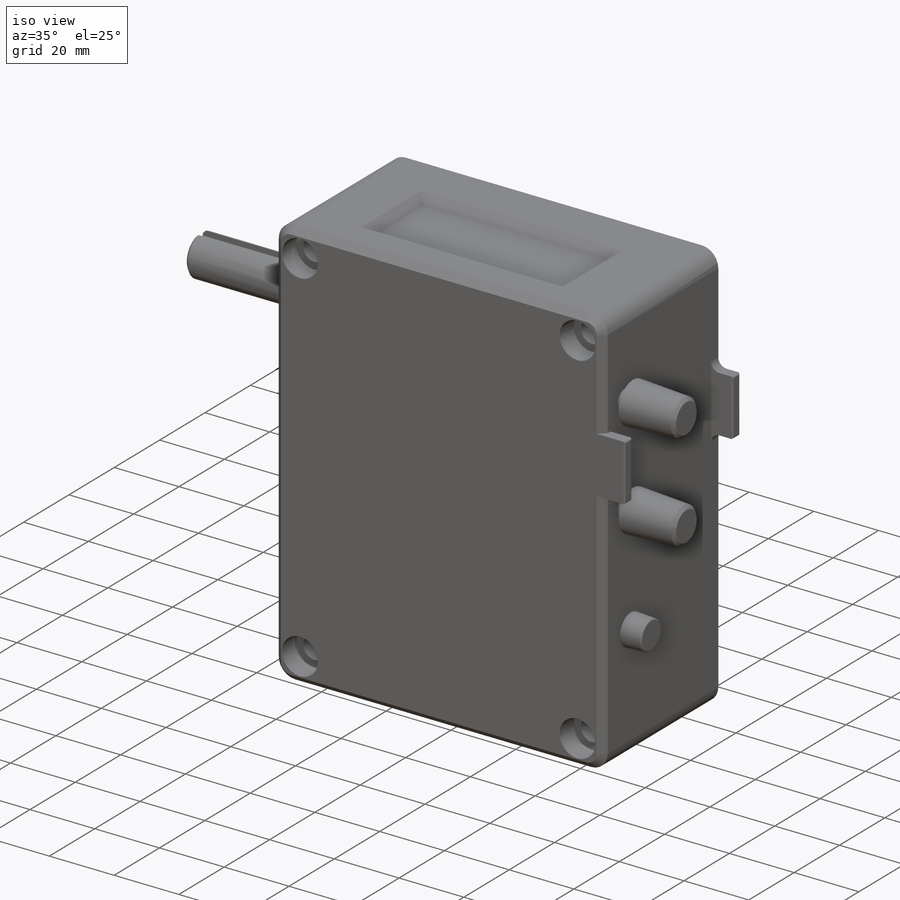
[diagram: iso view]
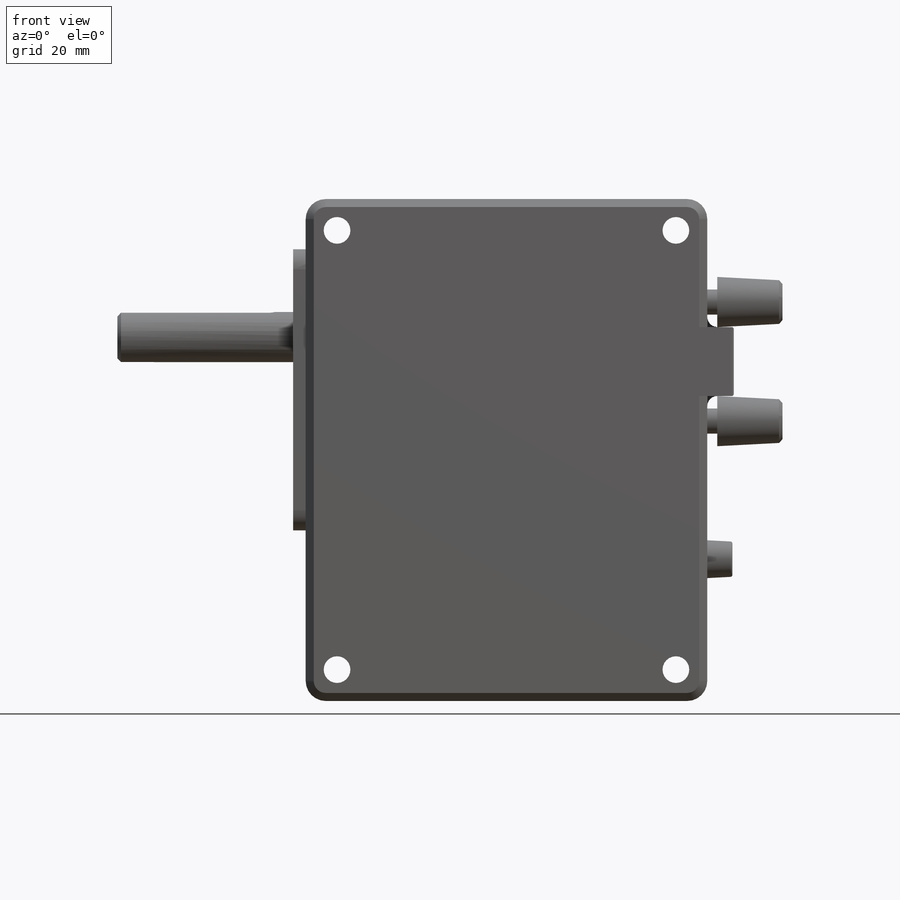
[diagram: front view]
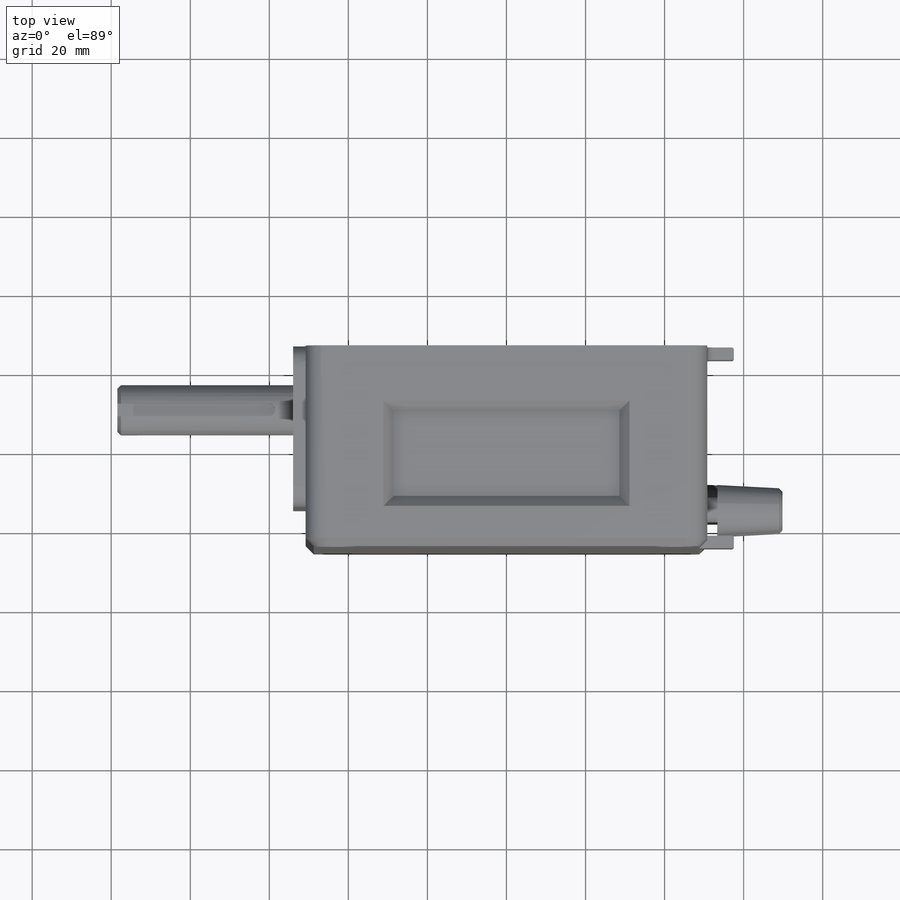
[diagram: top view]
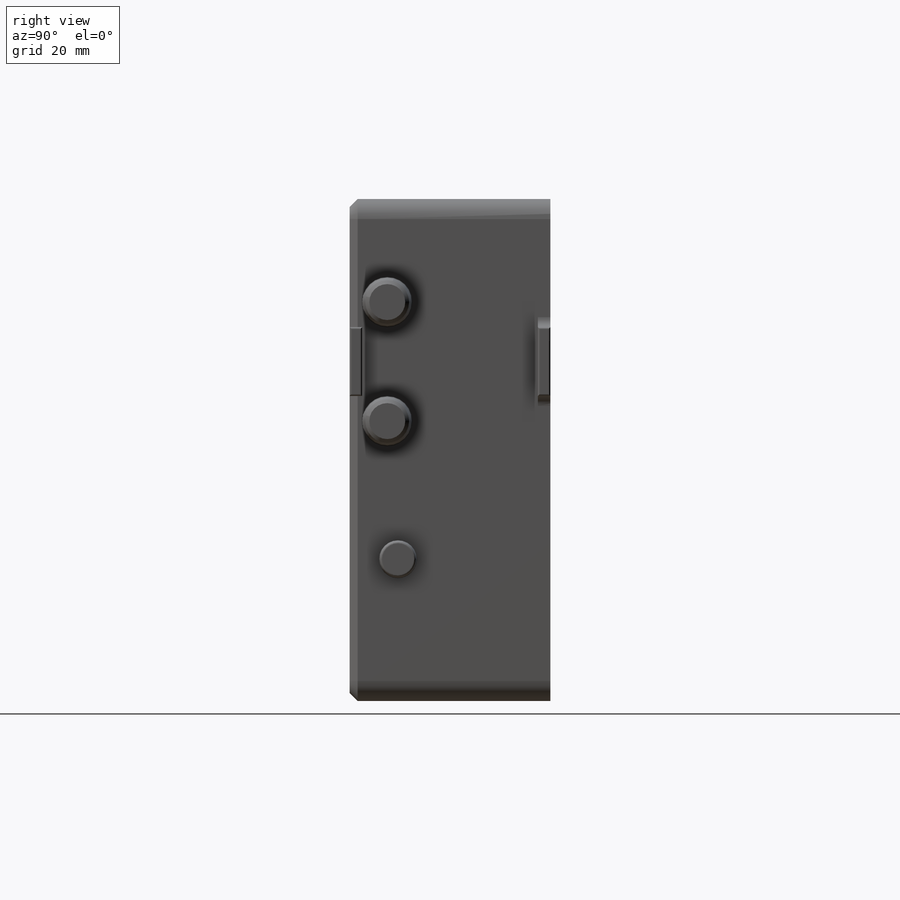
[diagram: right view]
SOLIDWORKS PART (.sldprt)
format: sldprt  version: not decoded by parser v0  size: 472,064 bytes
history: native  units: mm
features: sketch x12, extrude x8, fillet x5, chamfer x3, cut_extrude x2, material x1, hole x1 (+16 scaffold rows collapsed)
feature tree (48):
  scaffold x16  (default folders/planes/origin — collapsed)
  material  "Material <not specified>"
  sketch  "Sketch2"  dims[D1=101.6mm D2=127.0mm]
  extrude  "Boss-Extrude1"  Depth=50.8mm
  fillet  "Fillet1"  Radius=5.08mm
  hole  "CBORE for 1/4 Socket Head Cap Screw1"  Diameter=6.7564mm Depth=50.8mm
  sketch  "Sketch4"  dims[D1=85.725mm D2=111.125mm]
  sketch  "Sketch3"  dims[hole-wizard template sketch: 42 standard entries collapsed; hole parameters kept: c12.Thru Hole Depth=50.8mm c12.C'Bore Dia.=11.1125mm c12.C'Bore Depth=6.35mm]
  sketch  "Sketch6"  dims[D1=40.64mm D2=12.7mm D3=71.12mm]
  extrude  "Boss-Extrude3"  Depth=3.175mm
  sketch  "Sketch5"  dims[c1.D1=~13.504256mm c1.D2=~13.504256mm c1.D3=12.7mm c2.D1=34.925mm c2.D2=15.875mm]
  extrude  "Boss-Extrude2"  Depth=44.45mm
  chamfer  "Chamfer1"  Distance=2.032mm Angle=45deg
  sketch  "Sketch7"
  extrude  "Boss-Extrude4"  Depth=3.175mm
  fillet  "Fillet2"  Radius=5.08mm
  sketch  "Sketch8"  dims[D1=0.0mm]
  extrude  "Boss-Extrude5"  Depth=3.175mm
  fillet  "Fillet3"  Radius=2.54mm
  sketch  "Sketch9"  dims[D1=12.7mm D2=9.525mm]
  extrude  "Boss-Extrude6"  Depth=16.51mm
  sketch  "Sketch10"  dims[D1=6.35mm D2=6.35mm]
  extrude  "Boss-Extrude7"  [1 undecoded]
  sketch  "Sketch11"
  extrude  "Boss-Extrude8"  Depth=6.35mm
  sketch  "Sketch12"  dims[c1.D1=1.778mm c1.D2=3.175mm c2.D1=1.778mm c2.D3=2.54mm]
  cut_extrude  "Cut-Extrude1"  Depth=39.878mm
  fillet  "Fillet4"  Radius=1.5875mm
  chamfer  "Chamfer2"  Distance=0.889mm Angle=45deg
  chamfer  "Chamfer3"  Distance=0.889mm Angle=45deg
  sketch  "Sketch13"
  cut_extrude  "Cut-Extrude2"  Depth=2.54mm
  fillet  "Fillet5"  Radius=0.508mm
decode coverage: 27 of 31 modeling features carry decoded parameters
note: ~ marks probable driven/reference dimensions
note: 1 parameter value undecoded
note: suppression state not decoded; provenance and decode notes live in map.json
